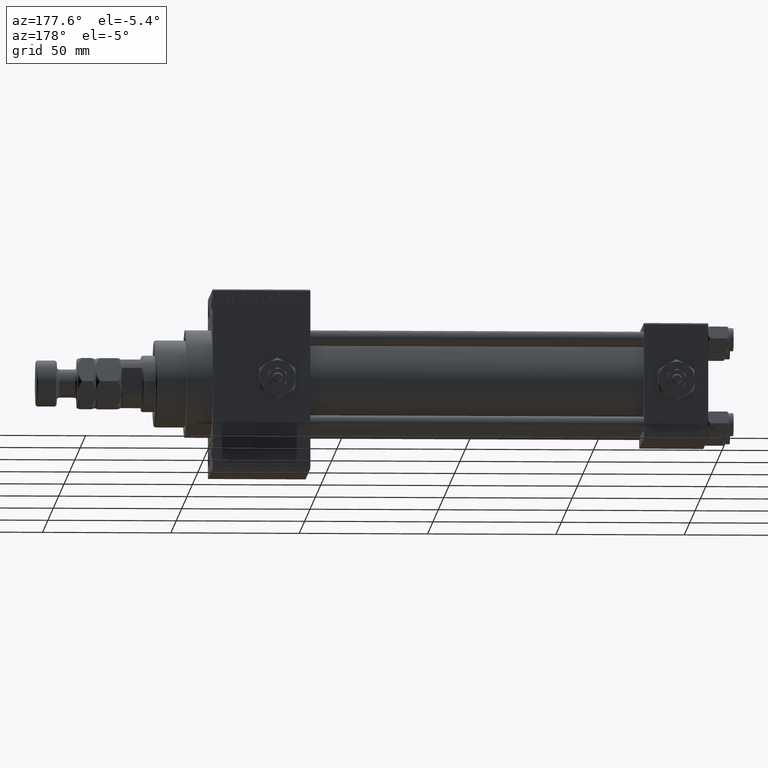
[diagram: clean part render]
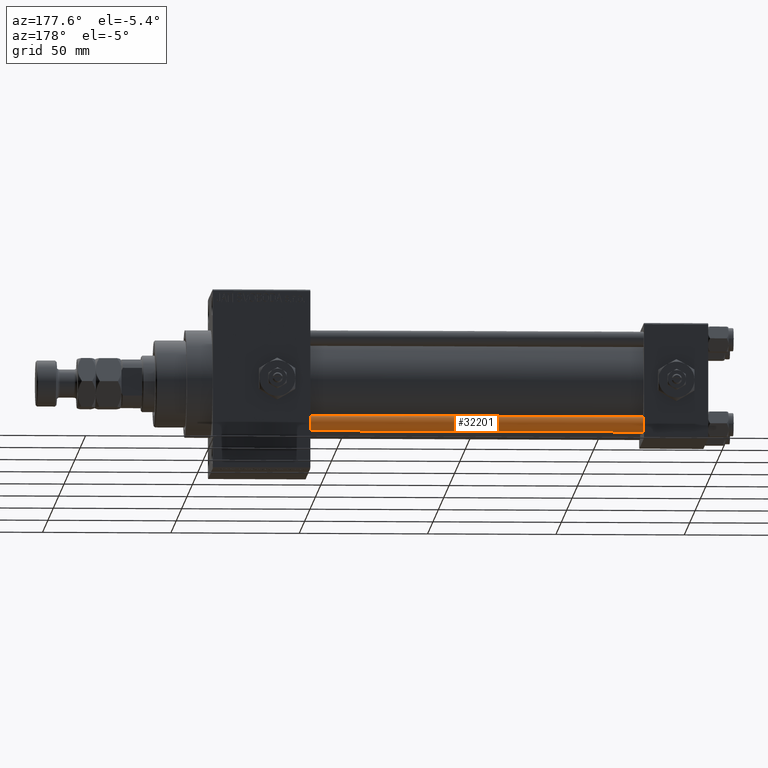
[diagram: same view with one face highlighted and labeled with its STEP entity id]
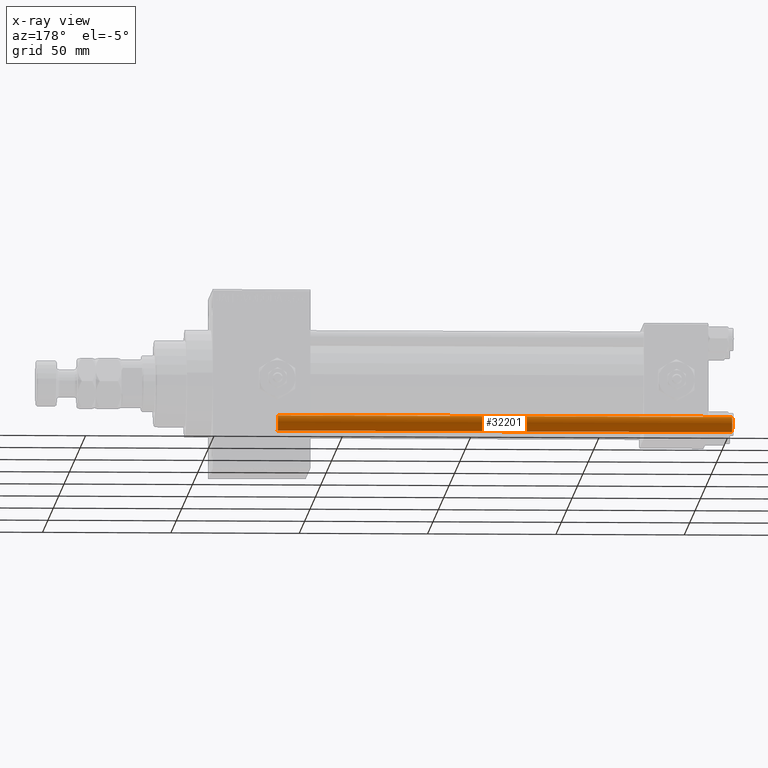
[diagram: x-ray of the same camera — body ghosted, the highlighted face saturated]
A machine part, auxiliary view. The second image highlights one B-rep face of the part: STEP entity #32201.
The next image is the same camera in x-ray: the body ghosted, the highlighted face saturated — about 0% of this face is hidden behind the body in this view.
In plain terms, the highlighted cylindrical surface (edge-blend (fillet) strip) has radius 3 mm, axis along (1, -0, 0).
Its self-contained STEP definition (entity closure, byte-faithful):
#3737 = DIRECTION ( 'NONE',  ( 0.000000000000000000, 0.000000000000000000, -1.000000000000000000 ) ) ;
#3930 = ORIENTED_EDGE ( 'NONE', *, *, #24527, .T. ) ;
#7049 = AXIS2_PLACEMENT_3D ( 'NONE', #40226, #43583, #8388 ) ;
#8138 = FACE_OUTER_BOUND ( 'NONE', #28609, .T. ) ;
#8388 = DIRECTION ( 'NONE',  ( -1.000000000000000000, 0.000000000000000000, 0.000000000000000000 ) ) ;
#8760 = ORIENTED_EDGE ( 'NONE', *, *, #43218, .T. ) ;
#9048 = CARTESIAN_POINT ( 'NONE',  ( 0.000000000000000000, 0.000000000000000000, 0.5000000000000281997 ) ) ;
#9739 = CIRCLE ( 'NONE', #21255, 3.000000000000000444 ) ;
#9806 = VECTOR ( 'NONE', #44496, 1000.000000000000000 ) ;
#9857 = CARTESIAN_POINT ( 'NONE',  ( 3.000000000000000444, 3.673940397442060361E-16, 177.5000000000000000 ) ) ;
#12894 = DIRECTION ( 'NONE',  ( 1.000000000000000000, 0.000000000000000000, 0.000000000000000000 ) ) ;
#13099 = ORIENTED_EDGE ( 'NONE', *, *, #42756, .F. ) ;
#18892 = DIRECTION ( 'NONE',  ( 1.000000000000000000, 0.000000000000000000, 0.000000000000000000 ) ) ;
#20100 = LINE ( 'NONE', #40129, #9806 ) ;
#20445 = VERTEX_POINT ( 'NONE', #9857 ) ;
#20586 = CARTESIAN_POINT ( 'NONE',  ( -3.000000000000000444, 0.000000000000000000, 178.0000000000000000 ) ) ;
#21255 = AXIS2_PLACEMENT_3D ( 'NONE', #31488, #3737, #18892 ) ;
#21575 = AXIS2_PLACEMENT_3D ( 'NONE', #9048, #28831, #12894 ) ;
#22437 = CARTESIAN_POINT ( 'NONE',  ( 3.000000000000000444, 3.673940397442060361E-16, 0.5000000000000281997 ) ) ;
#23600 = VERTEX_POINT ( 'NONE', #22437 ) ;
#23909 = ORIENTED_EDGE ( 'NONE', *, *, #44729, .T. ) ;
#24527 = EDGE_CURVE ( 'NONE', #23600, #44875, #26500, .T. ) ;
#24993 = CARTESIAN_POINT ( 'NONE',  ( -3.000000000000000444, 0.000000000000000000, 177.5000000000000000 ) ) ;
#26500 = CIRCLE ( 'NONE', #21575, 3.000000000000000444 ) ;
#28609 = EDGE_LOOP ( 'NONE', ( #8760, #23909, #3930, #13099 ) ) ;
#28831 = DIRECTION ( 'NONE',  ( -0.000000000000000000, -0.000000000000000000, 1.000000000000000000 ) ) ;
#29633 = VERTEX_POINT ( 'NONE', #24993 ) ;
#31488 = CARTESIAN_POINT ( 'NONE',  ( 0.000000000000000000, 0.000000000000000000, 177.5000000000000000 ) ) ;
#32201 = ADVANCED_FACE ( 'NONE', ( #8138 ), #35879, .T. ) ;
#33569 = VECTOR ( 'NONE', #43970, 1000.000000000000000 ) ;
#35879 = CYLINDRICAL_SURFACE ( 'NONE', #7049, 3.000000000000000444 ) ;
#40129 = CARTESIAN_POINT ( 'NONE',  ( 3.000000000000000444, 3.673940397442060361E-16, 178.0000000000000000 ) ) ;
#40226 = CARTESIAN_POINT ( 'NONE',  ( 0.000000000000000000, 0.000000000000000000, 178.0000000000000000 ) ) ;
#41654 = CARTESIAN_POINT ( 'NONE',  ( -3.000000000000000444, 0.000000000000000000, 0.5000000000000281997 ) ) ;
#42756 = EDGE_CURVE ( 'NONE', #29633, #44875, #47824, .T. ) ;
#43218 = EDGE_CURVE ( 'NONE', #29633, #20445, #9739, .T. ) ;
#43583 = DIRECTION ( 'NONE',  ( -0.000000000000000000, -0.000000000000000000, -1.000000000000000000 ) ) ;
#43970 = DIRECTION ( 'NONE',  ( -0.000000000000000000, -0.000000000000000000, -1.000000000000000000 ) ) ;
#44496 = DIRECTION ( 'NONE',  ( -0.000000000000000000, -0.000000000000000000, -1.000000000000000000 ) ) ;
#44729 = EDGE_CURVE ( 'NONE', #20445, #23600, #20100, .T. ) ;
#44875 = VERTEX_POINT ( 'NONE', #41654 ) ;
#47824 = LINE ( 'NONE', #20586, #33569 ) ;